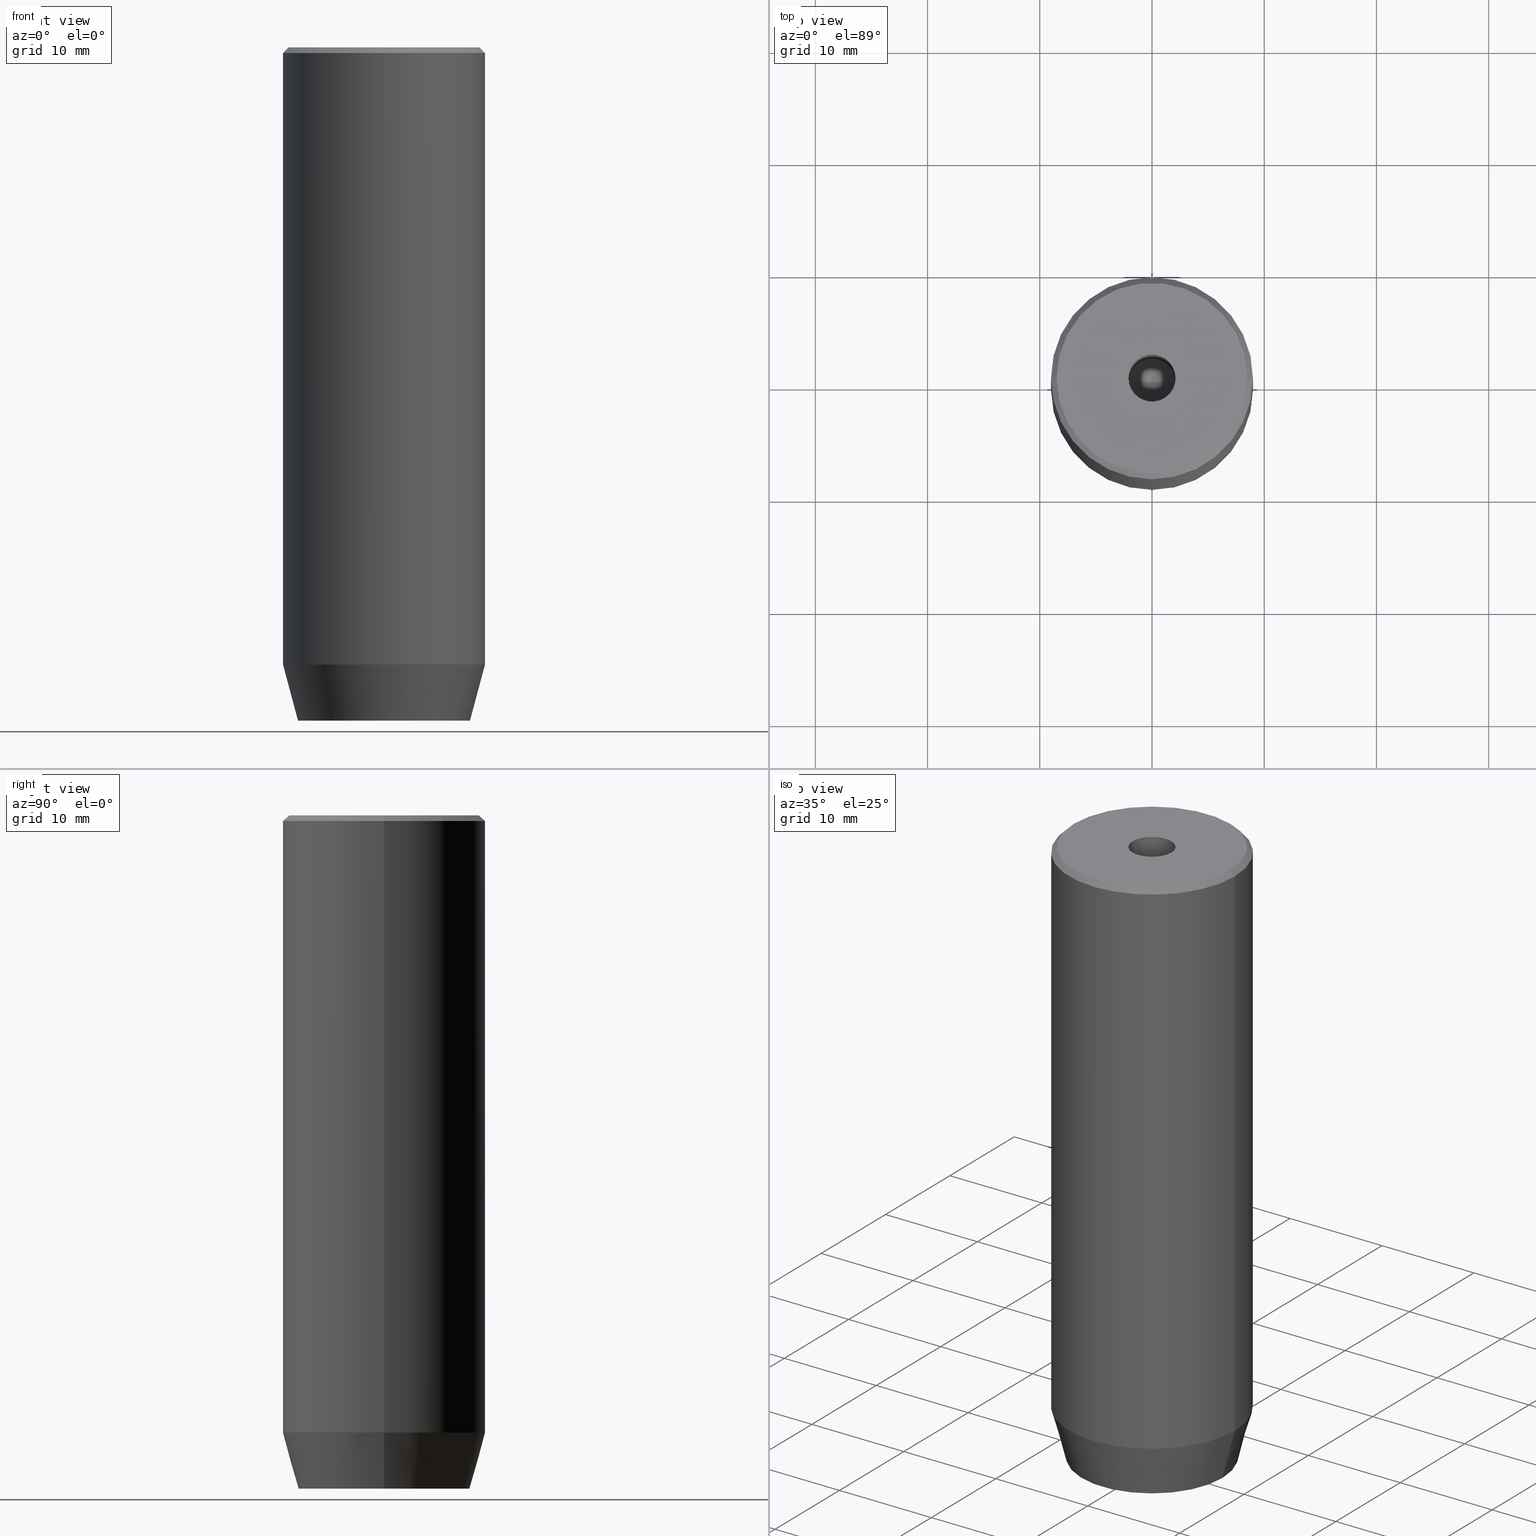
[diagram: canonical four-view strip — front | top / right | iso, engineering-drawing reading convention]
A machine part, canonical four-view strip (front | top / right | iso — engineering-drawing reading convention). The complete STEP part file that produces these views, byte-faithful:
ISO-10303-21;
HEADER;
FILE_DESCRIPTION (( 'STEP AP203' ),
    '1' );
FILE_NAME ('a99a.STEP',
    '2024-01-02T20:37:47',
    ( '' ),
    ( '' ),
    'SwSTEP 2.0',
    'SolidWorks 2019',
    '' );
FILE_SCHEMA (( 'CONFIG_CONTROL_DESIGN' ));
ENDSEC;

DATA;
#1 = CARTESIAN_POINT ( 'NONE',  ( -2.168404344971008868E-16, -3.464101615137754830, -60.00000000000000000 ) ) ;
#2 = DIRECTION ( 'NONE',  ( -0.000000000000000000, -0.000000000000000000, 1.000000000000000000 ) ) ;
#3 = ORIENTED_EDGE ( 'NONE', *, *, #525, .T. ) ;
#4 = DIRECTION ( 'NONE',  ( -0.8660254037844385966, -0.5000000000000001110, 0.000000000000000000 ) ) ;
#5 = LINE ( 'NONE', #278, #68 ) ;
#6 = DIRECTION ( 'NONE',  ( -1.000000000000000000, 0.000000000000000000, 0.000000000000000000 ) ) ;
#7 = EDGE_LOOP ( 'NONE', ( #498, #365, #12, #380 ) ) ;
#8 = LINE ( 'NONE', #269, #227 ) ;
#9 = APPROVAL ( #502, 'NEUR�EN�' ) ;
#10 = CIRCLE ( 'NONE', #328, 2.099999999999998757 ) ;
#11 = LINE ( 'NONE', #493, #218 ) ;
#12 = ORIENTED_EDGE ( 'NONE', *, *, #44, .T. ) ;
#13 = DESIGN_CONTEXT ( 'detailed design', #303, 'design' ) ;
#14 = FACE_OUTER_BOUND ( 'NONE', #479, .T. ) ;
#15 = DIRECTION ( 'NONE',  ( -0.000000000000000000, -0.000000000000000000, 1.000000000000000000 ) ) ;
#16 = APPROVAL_DATE_TIME ( #469, #9 ) ;
#17 = DIRECTION ( 'NONE',  ( 1.000000000000000000, 0.000000000000000000, 0.000000000000000000 ) ) ;
#18 = ORIENTED_EDGE ( 'NONE', *, *, #72, .F. ) ;
#19 = PERSON_AND_ORGANIZATION ( #371, #564 ) ;
#20 = CARTESIAN_POINT ( 'NONE',  ( -1.084202172485504434E-16, 3.464101615137754830, -57.20000000000000284 ) ) ;
#21 = CIRCLE ( 'NONE', #78, 7.660254037844383745 ) ;
#22 = ADVANCED_FACE ( 'NONE', ( #126 ), #342, .F. ) ;
#23 = CARTESIAN_POINT ( 'NONE',  ( 0.000000000000000000, 0.000000000000000000, -55.00000000000000000 ) ) ;
#24 = ORIENTED_EDGE ( 'NONE', *, *, #85, .F. ) ;
#25 = ORIENTED_EDGE ( 'NONE', *, *, #338, .F. ) ;
#26 = CARTESIAN_POINT ( 'NONE',  ( 2.099999999999996092, 0.000000000000000000, -20.00000000000000000 ) ) ;
#27 = CARTESIAN_POINT ( 'NONE',  ( -2.099999999999998757, 2.571758278209440478E-16, -1.990051048614449116E-16 ) ) ;
#28 = EDGE_LOOP ( 'NONE', ( #360, #18, #417, #429, #345, #57 ) ) ;
#29 = DIRECTION ( 'NONE',  ( 1.000000000000000000, 0.000000000000000000, 0.000000000000000000 ) ) ;
#30 = EDGE_CURVE ( 'NONE', #533, #506, #299, .T. ) ;
#31 = VERTEX_POINT ( 'NONE', #41 ) ;
#32 = LINE ( 'NONE', #203, #346 ) ;
#33 = VECTOR ( 'NONE', #99, 1000.000000000000000 ) ;
#34 = FACE_OUTER_BOUND ( 'NONE', #160, .T. ) ;
#35 = LOCAL_TIME ( 21, 37, 47.00000000000000000, #284 ) ;
#36 = DIRECTION ( 'NONE',  ( 1.000000000000000000, 0.000000000000000000, 0.000000000000000000 ) ) ;
#37 = FACE_OUTER_BOUND ( 'NONE', #7, .T. ) ;
#38 = EDGE_CURVE ( 'NONE', #332, #73, #10, .T. ) ;
#39 = CIRCLE ( 'NONE', #563, 9.000000000000000000 ) ;
#40 = CONICAL_SURFACE ( 'NONE', #167, 8.500000000000021316, 0.7853981633974380649 ) ;
#41 = CARTESIAN_POINT ( 'NONE',  ( -9.000000000000000000, 1.102182119232617714E-15, -0.4999999999999882871 ) ) ;
#42 = DIRECTION ( 'NONE',  ( -0.8660254037844385966, 0.5000000000000001110, 0.000000000000000000 ) ) ;
#43 = DIRECTION ( 'NONE',  ( -0.000000000000000000, -0.000000000000000000, 1.000000000000000000 ) ) ;
#44 = EDGE_CURVE ( 'NONE', #31, #565, #285, .T. ) ;
#45 = ORIENTED_EDGE ( 'NONE', *, *, #242, .F. ) ;
#46 = LINE ( 'NONE', #138, #396 ) ;
#47 = AXIS2_PLACEMENT_3D ( 'NONE', #309, #214, #543 ) ;
#48 = VECTOR ( 'NONE', #324, 1000.000000000000000 ) ;
#49 = DIRECTION ( 'NONE',  ( -2.503857664561932376E-16, 1.000000000000000000, 0.000000000000000000 ) ) ;
#50 = PLANE ( 'NONE',  #239 ) ;
#51 = ORIENTED_EDGE ( 'NONE', *, *, #308, .T. ) ;
#52 = CARTESIAN_POINT ( 'NONE',  ( 0.000000000000000000, 0.000000000000000000, -20.00000000000000000 ) ) ;
#53 = ADVANCED_FACE ( 'NONE', ( #37 ), #207, .T. ) ;
#54 = VERTEX_POINT ( 'NONE', #540 ) ;
#55 = DIRECTION ( 'NONE',  ( -0.000000000000000000, -0.000000000000000000, 1.000000000000000000 ) ) ;
#56 = CLOSED_SHELL ( 'NONE', ( #430, #381, #180, #229, #53, #128, #247, #347, #291, #400, #573, #508, #80, #113, #321, #22, #172, #188, #587 ) ) ;
#57 = ORIENTED_EDGE ( 'NONE', *, *, #456, .F. ) ;
#58 = VECTOR ( 'NONE', #453, 1000.000000000000000 ) ;
#59 = DIRECTION ( 'NONE',  ( -0.2588190451025211836, 3.169619151431770488E-17, 0.9659258262890680902 ) ) ;
#60 = DIRECTION ( 'NONE',  ( -0.000000000000000000, -0.000000000000000000, 1.000000000000000000 ) ) ;
#61 = DIRECTION ( 'NONE',  ( 0.000000000000000000, 0.000000000000000000, -1.000000000000000000 ) ) ;
#62 = ORIENTED_EDGE ( 'NONE', *, *, #252, .F. ) ;
#63 = DIRECTION ( 'NONE',  ( 0.8660254037844385966, -0.5000000000000001110, 0.000000000000000000 ) ) ;
#64 = EDGE_CURVE ( 'NONE', #111, #290, #495, .T. ) ;
#65 = ORIENTED_EDGE ( 'NONE', *, *, #421, .F. ) ;
#66 = PERSON_AND_ORGANIZATION_ROLE ( 'design_supplier' ) ;
#67 = VERTEX_POINT ( 'NONE', #585 ) ;
#68 = VECTOR ( 'NONE', #175, 1000.000000000000000 ) ;
#69 =( GEOMETRIC_REPRESENTATION_CONTEXT ( 3 ) GLOBAL_UNCERTAINTY_ASSIGNED_CONTEXT ( ( #237 ) ) GLOBAL_UNIT_ASSIGNED_CONTEXT ( ( #320, #468, #420 ) ) REPRESENTATION_CONTEXT ( 'NONE', 'WORKASPACE' ) );
#70 = ORIENTED_EDGE ( 'NONE', *, *, #107, .F. ) ;
#71 = LINE ( 'NONE', #26, #317 ) ;
#72 = EDGE_CURVE ( 'NONE', #223, #215, #132, .T. ) ;
#73 = VERTEX_POINT ( 'NONE', #224 ) ;
#74 = DIRECTION ( 'NONE',  ( 0.8571673007021111124, 0.000000000000000000, 0.5150380749100562650 ) ) ;
#75 = CARTESIAN_POINT ( 'NONE',  ( -3.000000000000000888, 1.732050807568876527, -57.20000000000000284 ) ) ;
#76 = CARTESIAN_POINT ( 'NONE',  ( 9.000000000000000000, 0.000000000000000000, -55.00000000000000000 ) ) ;
#77 = DIRECTION ( 'NONE',  ( 0.000000000000000000, 0.000000000000000000, -1.000000000000000000 ) ) ;
#78 = AXIS2_PLACEMENT_3D ( 'NONE', #518, #287, #523 ) ;
#79 = ORIENTED_EDGE ( 'NONE', *, *, #472, .T. ) ;
#80 = ADVANCED_FACE ( 'NONE', ( #451 ), #372, .F. ) ;
#81 = AXIS2_PLACEMENT_3D ( 'NONE', #187, #405, #367 ) ;
#82 = VECTOR ( 'NONE', #580, 1000.000000000000000 ) ;
#83 = CARTESIAN_POINT ( 'NONE',  ( 0.000000000000000000, 0.000000000000000000, -0.4999999999999882871 ) ) ;
#84 = ORIENTED_EDGE ( 'NONE', *, *, #195, .T. ) ;
#85 = EDGE_CURVE ( 'NONE', #67, #234, #301, .T. ) ;
#86 = DIRECTION ( 'NONE',  ( 0.000000000000000000, 0.000000000000000000, -1.000000000000000000 ) ) ;
#87 = FACE_OUTER_BOUND ( 'NONE', #411, .T. ) ;
#88 = CARTESIAN_POINT ( 'NONE',  ( 3.000000000000000000, 0.000000000000000000, -57.20000000000000284 ) ) ;
#89 = CARTESIAN_POINT ( 'NONE',  ( 0.000000000000000000, 0.000000000000000000, 0.000000000000000000 ) ) ;
#90 = FACE_OUTER_BOUND ( 'NONE', #154, .T. ) ;
#91 = ORIENTED_EDGE ( 'NONE', *, *, #107, .T. ) ;
#92 = CARTESIAN_POINT ( 'NONE',  ( 1.500000000000000222, -2.598076211353315568, -60.00000000000000000 ) ) ;
#93 = FACE_OUTER_BOUND ( 'NONE', #330, .T. ) ;
#94 = AXIS2_PLACEMENT_3D ( 'NONE', #535, #98, #463 ) ;
#95 = CARTESIAN_POINT ( 'NONE',  ( 0.000000000000000000, 0.000000000000000000, 0.000000000000000000 ) ) ;
#96 = EDGE_LOOP ( 'NONE', ( #194, #168, #170, #584, #102, #173 ) ) ;
#97 = EDGE_CURVE ( 'NONE', #358, #123, #136, .T. ) ;
#98 = DIRECTION ( 'NONE',  ( -0.000000000000000000, -0.000000000000000000, 1.000000000000000000 ) ) ;
#99 = DIRECTION ( 'NONE',  ( -0.8660254037844385966, 0.5000000000000001110, 0.000000000000000000 ) ) ;
#100 = CARTESIAN_POINT ( 'NONE',  ( -2.099999999999996092, 2.571758278209436534E-16, -20.00000000000000000 ) ) ;
#101 = DIRECTION ( 'NONE',  ( -0.000000000000000000, -0.000000000000000000, 1.000000000000000000 ) ) ;
#102 = ORIENTED_EDGE ( 'NONE', *, *, #363, .T. ) ;
#103 = DIRECTION ( 'NONE',  ( -0.000000000000000000, -0.000000000000000000, 1.000000000000000000 ) ) ;
#104 = DIRECTION ( 'NONE',  ( -0.8660254037844385966, 0.5000000000000001110, 0.000000000000000000 ) ) ;
#105 = ORIENTED_EDGE ( 'NONE', *, *, #212, .F. ) ;
#106 = APPROVAL_PERSON_ORGANIZATION ( #473, #293, #226 ) ;
#107 = EDGE_CURVE ( 'NONE', #225, #223, #186, .T. ) ;
#108 = ORIENTED_EDGE ( 'NONE', *, *, #260, .F. ) ;
#109 = CALENDAR_DATE ( 2024, 2, 1 ) ;
#110 = VERTEX_POINT ( 'NONE', #141 ) ;
#111 = VERTEX_POINT ( 'NONE', #263 ) ;
#112 = VECTOR ( 'NONE', #571, 1000.000000000000000 ) ;
#113 = ADVANCED_FACE ( 'NONE', ( #147 ), #267, .F. ) ;
#114 = LINE ( 'NONE', #119, #452 ) ;
#115 = COORDINATED_UNIVERSAL_TIME_OFFSET ( 1, 0, .AHEAD. ) ;
#116 = VERTEX_POINT ( 'NONE', #20 ) ;
#117 = FACE_OUTER_BOUND ( 'NONE', #298, .T. ) ;
#118 = LINE ( 'NONE', #75, #112 ) ;
#119 = CARTESIAN_POINT ( 'NONE',  ( 3.000000000000000000, 1.732050807568876527, -57.20000000000000284 ) ) ;
#120 = DIRECTION ( 'NONE',  ( 0.2588190451025211836, 0.000000000000000000, 0.9659258262890680902 ) ) ;
#121 = ORIENTED_EDGE ( 'NONE', *, *, #64, .T. ) ;
#122 = CC_DESIGN_SECURITY_CLASSIFICATION ( #329, ( #354 ) ) ;
#123 = VERTEX_POINT ( 'NONE', #379 ) ;
#124 = VECTOR ( 'NONE', #4, 1000.000000000000000 ) ;
#125 = EDGE_CURVE ( 'NONE', #394, #54, #499, .T. ) ;
#126 = FACE_OUTER_BOUND ( 'NONE', #238, .T. ) ;
#127 = CARTESIAN_POINT ( 'NONE',  ( -2.168404344971008868E-16, -3.464101615137754830, -57.20000000000000284 ) ) ;
#128 = ADVANCED_FACE ( 'NONE', ( #514, #14 ), #288, .T. ) ;
#129 = AXIS2_PLACEMENT_3D ( 'NONE', #261, #413, #6 ) ;
#130 = AXIS2_PLACEMENT_3D ( 'NONE', #419, #272, #437 ) ;
#131 = LINE ( 'NONE', #446, #294 ) ;
#132 = LINE ( 'NONE', #359, #143 ) ;
#133 = CARTESIAN_POINT ( 'NONE',  ( -3.000000000000000444, -7.511572993685800087E-16, -57.20000000000000284 ) ) ;
#134 = ORIENTED_EDGE ( 'NONE', *, *, #497, .F. ) ;
#135 = CYLINDRICAL_SURFACE ( 'NONE', #397, 2.099999999999997424 ) ;
#136 = LINE ( 'NONE', #312, #184 ) ;
#137 = LINE ( 'NONE', #313, #248 ) ;
#138 = CARTESIAN_POINT ( 'NONE',  ( 1.500000000000000222, 2.598076211353315568, -57.20000000000000284 ) ) ;
#139 = ORIENTED_EDGE ( 'NONE', *, *, #482, .F. ) ;
#140 = DIRECTION ( 'NONE',  ( -0.000000000000000000, -0.000000000000000000, 1.000000000000000000 ) ) ;
#141 = CARTESIAN_POINT ( 'NONE',  ( -2.168404344971008868E-16, -3.464101615137754830, -57.20000000000000284 ) ) ;
#142 = LINE ( 'NONE', #100, #48 ) ;
#143 = VECTOR ( 'NONE', #49, 1000.000000000000000 ) ;
#144 = EDGE_CURVE ( 'NONE', #123, #506, #39, .T. ) ;
#145 = EDGE_LOOP ( 'NONE', ( #414, #530, #105, #84 ) ) ;
#146 = ORIENTED_EDGE ( 'NONE', *, *, #169, .T. ) ;
#147 = FACE_OUTER_BOUND ( 'NONE', #553, .T. ) ;
#148 = SECURITY_CLASSIFICATION_LEVEL ( 'unclassified' ) ;
#149 = DIRECTION ( 'NONE',  ( -0.000000000000000000, -0.000000000000000000, -1.000000000000000000 ) ) ;
#150 = EDGE_CURVE ( 'NONE', #202, #110, #159, .T. ) ;
#151 = DATE_AND_TIME ( #109, #438 ) ;
#152 = AXIS2_PLACEMENT_3D ( 'NONE', #393, #435, #29 ) ;
#153 = CIRCLE ( 'NONE', #481, 7.660254037844383745 ) ;
#154 = EDGE_LOOP ( 'NONE', ( #289, #560, #470, #139 ) ) ;
#155 = CC_DESIGN_PERSON_AND_ORGANIZATION_ASSIGNMENT ( #385, #551, ( #331 ) ) ;
#156 = PERSON_AND_ORGANIZATION ( #371, #564 ) ;
#157 = APPROVAL_STATUS ( 'not_yet_approved' ) ;
#158 = EDGE_CURVE ( 'NONE', #234, #565, #243, .T. ) ;
#159 = LINE ( 'NONE', #375, #554 ) ;
#160 = EDGE_LOOP ( 'NONE', ( #181, #108, #522, #384 ) ) ;
#161 = COORDINATED_UNIVERSAL_TIME_OFFSET ( 1, 0, .AHEAD. ) ;
#162 = CC_DESIGN_APPROVAL ( #475, ( #329 ) ) ;
#163 = AXIS2_PLACEMENT_3D ( 'NONE', #433, #556, #204 ) ;
#164 = DIRECTION ( 'NONE',  ( 1.000000000000000000, 0.000000000000000000, 0.000000000000000000 ) ) ;
#165 = AXIS2_PLACEMENT_3D ( 'NONE', #182, #366, #220 ) ;
#166 = DIRECTION ( 'NONE',  ( -0.7071067811865402453, 0.000000000000000000, -0.7071067811865549002 ) ) ;
#167 = AXIS2_PLACEMENT_3D ( 'NONE', #361, #322, #505 ) ;
#168 = ORIENTED_EDGE ( 'NONE', *, *, #281, .T. ) ;
#169 = EDGE_CURVE ( 'NONE', #116, #512, #476, .T. ) ;
#170 = ORIENTED_EDGE ( 'NONE', *, *, #395, .T. ) ;
#171 = AXIS2_PLACEMENT_3D ( 'NONE', #83, #86, #579 ) ;
#172 = ADVANCED_FACE ( 'NONE', ( #326 ), #276, .T. ) ;
#173 = ORIENTED_EDGE ( 'NONE', *, *, #222, .T. ) ;
#174 = CC_DESIGN_APPROVAL ( #293, ( #354 ) ) ;
#175 = DIRECTION ( 'NONE',  ( -0.000000000000000000, -0.000000000000000000, 1.000000000000000000 ) ) ;
#176 = ORIENTED_EDGE ( 'NONE', *, *, #195, .F. ) ;
#177 = CARTESIAN_POINT ( 'NONE',  ( -3.000000000000000888, 1.732050807568876527, -60.00000000000000000 ) ) ;
#178 = EDGE_LOOP ( 'NONE', ( #348, #337, #3, #509 ) ) ;
#179 = DIRECTION ( 'NONE',  ( -0.000000000000000000, -0.000000000000000000, -1.000000000000000000 ) ) ;
#180 = ADVANCED_FACE ( 'NONE', ( #90 ), #450, .T. ) ;
#181 = ORIENTED_EDGE ( 'NONE', *, *, #388, .T. ) ;
#182 = CARTESIAN_POINT ( 'NONE',  ( -1.500000000000000666, -2.598076211353316456, -57.20000000000000284 ) ) ;
#183 = DIRECTION ( 'NONE',  ( 0.000000000000000000, -1.000000000000000000, 0.000000000000000000 ) ) ;
#184 = VECTOR ( 'NONE', #59, 1000.000000000000114 ) ;
#185 = ORIENTED_EDGE ( 'NONE', *, *, #456, .T. ) ;
#186 = LINE ( 'NONE', #401, #264 ) ;
#187 = CARTESIAN_POINT ( 'NONE',  ( 0.000000000000000000, 0.000000000000000000, 0.000000000000000000 ) ) ;
#188 = ADVANCED_FACE ( 'NONE', ( #545 ), #368, .F. ) ;
#189 = DATE_AND_TIME ( #271, #511 ) ;
#190 = FACE_OUTER_BOUND ( 'NONE', #178, .T. ) ;
#191 = VECTOR ( 'NONE', #410, 1000.000000000000000 ) ;
#192 = AXIS2_PLACEMENT_3D ( 'NONE', #52, #15, #586 ) ;
#193 = DIRECTION ( 'NONE',  ( 1.000000000000000000, 0.000000000000000000, 0.000000000000000000 ) ) ;
#194 = ORIENTED_EDGE ( 'NONE', *, *, #212, .T. ) ;
#195 = EDGE_CURVE ( 'NONE', #255, #215, #118, .T. ) ;
#196 = DIRECTION ( 'NONE',  ( -0.000000000000000000, -0.000000000000000000, 1.000000000000000000 ) ) ;
#197 = COORDINATED_UNIVERSAL_TIME_OFFSET ( 1, 0, .AHEAD. ) ;
#198 = DIRECTION ( 'NONE',  ( 0.7071067811865402453, 8.659560562354845344E-17, -0.7071067811865549002 ) ) ;
#199 = ORIENTED_EDGE ( 'NONE', *, *, #38, .F. ) ;
#200 = PRODUCT ( 'a99a', 'a99a', '', ( #427 ) ) ;
#201 = CIRCLE ( 'NONE', #47, 2.099999999999998757 ) ;
#202 = VERTEX_POINT ( 'NONE', #441 ) ;
#203 = CARTESIAN_POINT ( 'NONE',  ( 9.000000000000000000, 0.000000000000000000, 0.000000000000000000 ) ) ;
#204 = DIRECTION ( 'NONE',  ( -0.000000000000000000, 0.000000000000000000, -1.000000000000000000 ) ) ;
#205 = EDGE_CURVE ( 'NONE', #565, #31, #351, .T. ) ;
#206 = CARTESIAN_POINT ( 'NONE',  ( 9.000000000000000000, 0.000000000000000000, -0.4999999999999882871 ) ) ;
#207 = CYLINDRICAL_SURFACE ( 'NONE', #480, 9.000000000000000000 ) ;
#208 = ORIENTED_EDGE ( 'NONE', *, *, #125, .F. ) ;
#209 = DIRECTION ( 'NONE',  ( 0.000000000000000000, 0.000000000000000000, -1.000000000000000000 ) ) ;
#210 = CARTESIAN_POINT ( 'NONE',  ( 0.000000000000000000, 0.000000000000000000, -1.990051048614449116E-16 ) ) ;
#211 = VECTOR ( 'NONE', #149, 1000.000000000000000 ) ;
#212 = EDGE_CURVE ( 'NONE', #255, #116, #131, .T. ) ;
#213 = CARTESIAN_POINT ( 'NONE',  ( -3.000000000000000000, -1.732050807568877859, -60.00000000000000000 ) ) ;
#214 = DIRECTION ( 'NONE',  ( -0.000000000000000000, -0.000000000000000000, 1.000000000000000000 ) ) ;
#215 = VERTEX_POINT ( 'NONE', #177 ) ;
#216 = PLANE ( 'NONE',  #295 ) ;
#217 = AXIS2_PLACEMENT_3D ( 'NONE', #529, #349, #42 ) ;
#218 = VECTOR ( 'NONE', #104, 1000.000000000000000 ) ;
#219 = ORIENTED_EDGE ( 'NONE', *, *, #72, .T. ) ;
#220 = DIRECTION ( 'NONE',  ( 0.8660254037844385966, -0.5000000000000001110, 0.000000000000000000 ) ) ;
#221 = FACE_OUTER_BOUND ( 'NONE', #231, .T. ) ;
#222 = EDGE_CURVE ( 'NONE', #225, #255, #362, .T. ) ;
#223 = VERTEX_POINT ( 'NONE', #213 ) ;
#224 = CARTESIAN_POINT ( 'NONE',  ( 2.099999999999998757, 0.000000000000000000, -1.990051048614449116E-16 ) ) ;
#225 = VERTEX_POINT ( 'NONE', #399 ) ;
#226 = APPROVAL_ROLE ( '' ) ;
#227 = VECTOR ( 'NONE', #327, 999.9999999999998863 ) ;
#228 = APPROVAL_PERSON_ORGANIZATION ( #538, #9, #280 ) ;
#229 = ADVANCED_FACE ( 'NONE', ( #93 ), #487, .T. ) ;
#230 = VECTOR ( 'NONE', #166, 1000.000000000000114 ) ;
#231 = EDGE_LOOP ( 'NONE', ( #350, #24, #333, #268 ) ) ;
#232 = CARTESIAN_POINT ( 'NONE',  ( -1.084202172485504434E-16, 3.464101615137754830, -57.20000000000000284 ) ) ;
#233 = CARTESIAN_POINT ( 'NONE',  ( -9.000000000000000000, 1.102182119232617714E-15, 0.000000000000000000 ) ) ;
#234 = VERTEX_POINT ( 'NONE', #537 ) ;
#235 = FACE_OUTER_BOUND ( 'NONE', #300, .T. ) ;
#236 = DATE_TIME_ROLE ( 'creation_date' ) ;
#237 = UNCERTAINTY_MEASURE_WITH_UNIT (LENGTH_MEASURE( 1.000000000000000082E-05 ), #320, 'distance_accuracy_value', 'NONE');
#238 = EDGE_LOOP ( 'NONE', ( #185, #307, #572, #146 ) ) ;
#239 = AXIS2_PLACEMENT_3D ( 'NONE', #89, #318, #501 ) ;
#240 = VECTOR ( 'NONE', #2, 1000.000000000000000 ) ;
#241 = ORIENTED_EDGE ( 'NONE', *, *, #30, .T. ) ;
#242 = EDGE_CURVE ( 'NONE', #73, #332, #201, .T. ) ;
#243 = LINE ( 'NONE', #552, #546 ) ;
#244 = ORIENTED_EDGE ( 'NONE', *, *, #421, .T. ) ;
#245 = DIRECTION ( 'NONE',  ( -0.000000000000000000, -0.000000000000000000, -1.000000000000000000 ) ) ;
#246 = PLANE ( 'NONE',  #130 ) ;
#247 = ADVANCED_FACE ( 'NONE', ( #402, #581 ), #50, .T. ) ;
#248 = VECTOR ( 'NONE', #183, 1000.000000000000000 ) ;
#249 = DIRECTION ( 'NONE',  ( -1.000000000000000000, 0.000000000000000000, -0.000000000000000000 ) ) ;
#250 = CARTESIAN_POINT ( 'NONE',  ( 0.000000000000000000, 0.000000000000000000, -57.20000000000000284 ) ) ;
#251 = VERTEX_POINT ( 'NONE', #406 ) ;
#252 = EDGE_CURVE ( 'NONE', #54, #73, #5, .T. ) ;
#253 = AXIS2_PLACEMENT_3D ( 'NONE', #418, #383, #164 ) ;
#254 = DATE_AND_TIME ( #454, #262 ) ;
#255 = VERTEX_POINT ( 'NONE', #356 ) ;
#256 = CARTESIAN_POINT ( 'NONE',  ( 0.000000000000000000, 0.000000000000000000, -0.4999999999999882871 ) ) ;
#257 = CARTESIAN_POINT ( 'NONE',  ( 0.000000000000000000, 0.000000000000000000, -55.00000000000000000 ) ) ;
#258 = ORIENTED_EDGE ( 'NONE', *, *, #444, .T. ) ;
#259 = CARTESIAN_POINT ( 'NONE',  ( 3.000000000000000000, -1.732050807568876527, -57.20000000000000284 ) ) ;
#260 = EDGE_CURVE ( 'NONE', #202, #111, #532, .T. ) ;
#261 = CARTESIAN_POINT ( 'NONE',  ( 0.000000000000000000, 0.000000000000000000, 0.000000000000000000 ) ) ;
#262 = LOCAL_TIME ( 21, 37, 47.00000000000000000, #500 ) ;
#263 = CARTESIAN_POINT ( 'NONE',  ( 3.000000000000000000, -1.732050807568876527, -60.00000000000000000 ) ) ;
#264 = VECTOR ( 'NONE', #179, 1000.000000000000000 ) ;
#265 = DIRECTION ( 'NONE',  ( -0.000000000000000000, -0.000000000000000000, 1.000000000000000000 ) ) ;
#266 = ORIENTED_EDGE ( 'NONE', *, *, #363, .F. ) ;
#267 = PLANE ( 'NONE',  #273 ) ;
#268 = ORIENTED_EDGE ( 'NONE', *, *, #205, .F. ) ;
#269 = CARTESIAN_POINT ( 'NONE',  ( -1.499999999999999556, 2.598076211353316012, -60.00000000000000000 ) ) ;
#270 = APPROVAL_PERSON_ORGANIZATION ( #398, #475, #490 ) ;
#271 = CALENDAR_DATE ( 2024, 2, 1 ) ;
#272 = DIRECTION ( 'NONE',  ( -1.000000000000000000, -2.503857664561933362E-16, 0.000000000000000000 ) ) ;
#273 = AXIS2_PLACEMENT_3D ( 'NONE', #548, #323, #507 ) ;
#274 = CC_DESIGN_DATE_AND_TIME_ASSIGNMENT ( #189, #343, ( #329 ) ) ;
#275 = LINE ( 'NONE', #407, #391 ) ;
#276 = PLANE ( 'NONE',  #486 ) ;
#277 = ORIENTED_EDGE ( 'NONE', *, *, #472, .F. ) ;
#278 = CARTESIAN_POINT ( 'NONE',  ( 2.099999999999997424, 0.000000000000000000, 0.000000000000000000 ) ) ;
#279 = MANIFOLD_SOLID_BREP ( 'Vrt�k z�vitn�ku pro M5 z�vit1', #56 ) ;
#280 = APPROVAL_ROLE ( '' ) ;
#281 = EDGE_CURVE ( 'NONE', #116, #403, #46, .T. ) ;
#282 = CARTESIAN_POINT ( 'NONE',  ( 0.000000000000000000, 7.660254037844383745, -60.00000000000000000 ) ) ;
#283 = ORIENTED_EDGE ( 'NONE', *, *, #566, .T. ) ;
#284 = COORDINATED_UNIVERSAL_TIME_OFFSET ( 1, 0, .AHEAD. ) ;
#285 = CIRCLE ( 'NONE', #316, 9.000000000000000000 ) ;
#286 = ORIENTED_EDGE ( 'NONE', *, *, #30, .F. ) ;
#287 = DIRECTION ( 'NONE',  ( -0.000000000000000000, -0.000000000000000000, 1.000000000000000000 ) ) ;
#288 = PLANE ( 'NONE',  #464 ) ;
#289 = ORIENTED_EDGE ( 'NONE', *, *, #528, .F. ) ;
#290 = VERTEX_POINT ( 'NONE', #1 ) ;
#291 = ADVANCED_FACE ( 'NONE', ( #235 ), #344, .T. ) ;
#292 = CARTESIAN_POINT ( 'NONE',  ( 0.000000000000000000, 0.000000000000000000, -60.00000000000000000 ) ) ;
#293 = APPROVAL ( #157, 'NEUR�EN�' ) ;
#294 = VECTOR ( 'NONE', #306, 999.9999999999998863 ) ;
#295 = AXIS2_PLACEMENT_3D ( 'NONE', #576, #352, #302 ) ;
#296 = CARTESIAN_POINT ( 'NONE',  ( 0.000000000000000000, 0.000000000000000000, 0.000000000000000000 ) ) ;
#297 = PERSON_AND_ORGANIZATION_ROLE ( 'design_owner' ) ;
#298 = EDGE_LOOP ( 'NONE', ( #219, #176, #310, #91 ) ) ;
#299 = LINE ( 'NONE', #484, #520 ) ;
#300 = EDGE_LOOP ( 'NONE', ( #422, #51, #241, #314 ) ) ;
#301 = CIRCLE ( 'NONE', #94, 8.500000000000021316 ) ;
#302 = DIRECTION ( 'NONE',  ( -0.8660254037844387076, -0.4999999999999999445, 0.000000000000000000 ) ) ;
#303 = APPLICATION_CONTEXT ( 'configuration controlled 3d designs of mechanical parts and assemblies' ) ;
#304 = LOCAL_TIME ( 21, 37, 47.00000000000000000, #197 ) ;
#305 = APPROVAL_STATUS ( 'not_yet_approved' ) ;
#306 = DIRECTION ( 'NONE',  ( 0.8660254037844387076, 0.4999999999999999445, 0.000000000000000000 ) ) ;
#307 = ORIENTED_EDGE ( 'NONE', *, *, #550, .F. ) ;
#308 = EDGE_CURVE ( 'NONE', #358, #533, #21, .T. ) ;
#309 = CARTESIAN_POINT ( 'NONE',  ( 0.000000000000000000, 0.000000000000000000, -1.990051048614449116E-16 ) ) ;
#310 = ORIENTED_EDGE ( 'NONE', *, *, #222, .F. ) ;
#311 = CARTESIAN_POINT ( 'NONE',  ( 0.000000000000000000, 0.000000000000000000, 0.000000000000000000 ) ) ;
#312 = CARTESIAN_POINT ( 'NONE',  ( -9.000000000000000000, 1.102182119232617714E-15, -55.00000000000000000 ) ) ;
#313 = CARTESIAN_POINT ( 'NONE',  ( 3.000000000000000000, 0.000000000000000000, -60.00000000000000000 ) ) ;
#314 = ORIENTED_EDGE ( 'NONE', *, *, #144, .F. ) ;
#315 = CARTESIAN_POINT ( 'NONE',  ( -1.500000000000000666, -2.598076211353316456, -57.20000000000000284 ) ) ;
#316 = AXIS2_PLACEMENT_3D ( 'NONE', #256, #77, #439 ) ;
#317 = VECTOR ( 'NONE', #74, 1000.000000000000000 ) ;
#318 = DIRECTION ( 'NONE',  ( 0.000000000000000000, -0.000000000000000000, 1.000000000000000000 ) ) ;
#319 = ORIENTED_EDGE ( 'NONE', *, *, #559, .T. ) ;
#320 =( LENGTH_UNIT ( ) NAMED_UNIT ( * ) SI_UNIT ( .MILLI., .METRE. ) );
#321 = ADVANCED_FACE ( 'NONE', ( #34 ), #515, .F. ) ;
#322 = DIRECTION ( 'NONE',  ( 0.000000000000000000, 0.000000000000000000, -1.000000000000000000 ) ) ;
#323 = DIRECTION ( 'NONE',  ( 0.5000000000000001110, -0.8660254037844385966, 0.000000000000000000 ) ) ;
#324 = DIRECTION ( 'NONE',  ( -0.8571673007021111124, 1.049727191138617217E-16, 0.5150380749100562650 ) ) ;
#325 = ORIENTED_EDGE ( 'NONE', *, *, #485, .F. ) ;
#326 = FACE_OUTER_BOUND ( 'NONE', #96, .T. ) ;
#327 = DIRECTION ( 'NONE',  ( 0.8660254037844387076, 0.4999999999999999445, 0.000000000000000000 ) ) ;
#328 = AXIS2_PLACEMENT_3D ( 'NONE', #210, #341, #443 ) ;
#329 = SECURITY_CLASSIFICATION ( '', '', #148 ) ;
#330 = EDGE_LOOP ( 'NONE', ( #319, #503, #325, #286 ) ) ;
#331 = PRODUCT_DEFINITION ( 'NEZN�M�', '', #354, #13 ) ;
#332 = VERTEX_POINT ( 'NONE', #27 ) ;
#333 = ORIENTED_EDGE ( 'NONE', *, *, #482, .T. ) ;
#334 = DIRECTION ( 'NONE',  ( 1.000000000000000000, 0.000000000000000000, 0.000000000000000000 ) ) ;
#335 = PERSON_AND_ORGANIZATION ( #371, #564 ) ;
#336 = AXIS2_PLACEMENT_3D ( 'NONE', #296, #567, #17 ) ;
#337 = ORIENTED_EDGE ( 'NONE', *, *, #144, .T. ) ;
#338 = EDGE_CURVE ( 'NONE', #394, #332, #390, .T. ) ;
#339 = CARTESIAN_POINT ( 'NONE',  ( 0.000000000000000000, 0.000000000000000000, -55.00000000000000000 ) ) ;
#340 = CARTESIAN_POINT ( 'NONE',  ( 3.000000000000000000, 1.732050807568876527, -60.00000000000000000 ) ) ;
#341 = DIRECTION ( 'NONE',  ( -0.000000000000000000, -0.000000000000000000, 1.000000000000000000 ) ) ;
#342 = PLANE ( 'NONE',  #217 ) ;
#343 = DATE_TIME_ROLE ( 'classification_date' ) ;
#344 = CONICAL_SURFACE ( 'NONE', #510, 9.000000000000000000, 0.2617993877991499074 ) ;
#345 = ORIENTED_EDGE ( 'NONE', *, *, #388, .F. ) ;
#346 = VECTOR ( 'NONE', #60, 1000.000000000000000 ) ;
#347 = ADVANCED_FACE ( 'NONE', ( #190 ), #425, .T. ) ;
#348 = ORIENTED_EDGE ( 'NONE', *, *, #467, .F. ) ;
#349 = DIRECTION ( 'NONE',  ( 0.5000000000000001110, 0.8660254037844385966, -0.000000000000000000 ) ) ;
#350 = ORIENTED_EDGE ( 'NONE', *, *, #158, .F. ) ;
#351 = CIRCLE ( 'NONE', #171, 9.000000000000000000 ) ;
#352 = DIRECTION ( 'NONE',  ( -0.4999999999999999445, 0.8660254037844387076, 0.000000000000000000 ) ) ;
#353 = CARTESIAN_POINT ( 'NONE',  ( 0.000000000000000000, 0.000000000000000000, 0.000000000000000000 ) ) ;
#354 = PRODUCT_DEFINITION_FORMATION_WITH_SPECIFIED_SOURCE ( 'LIBOVOLN�', '', #200, .NOT_KNOWN. ) ;
#355 = EDGE_CURVE ( 'NONE', #215, #512, #8, .T. ) ;
#356 = CARTESIAN_POINT ( 'NONE',  ( -3.000000000000000888, 1.732050807568876527, -57.20000000000000284 ) ) ;
#357 = APPLICATION_CONTEXT ( 'configuration controlled 3d designs of mechanical parts and assemblies' ) ;
#358 = VERTEX_POINT ( 'NONE', #415 ) ;
#359 = CARTESIAN_POINT ( 'NONE',  ( -3.000000000000000444, -7.511572993685800087E-16, -60.00000000000000000 ) ) ;
#360 = ORIENTED_EDGE ( 'NONE', *, *, #355, .F. ) ;
#361 = CARTESIAN_POINT ( 'NONE',  ( 0.000000000000000000, 0.000000000000000000, 0.000000000000000000 ) ) ;
#362 = LINE ( 'NONE', #133, #191 ) ;
#363 = EDGE_CURVE ( 'NONE', #110, #225, #409, .T. ) ;
#364 = DIRECTION ( 'NONE',  ( 0.8660254037844385966, -0.5000000000000001110, 0.000000000000000000 ) ) ;
#365 = ORIENTED_EDGE ( 'NONE', *, *, #467, .T. ) ;
#366 = DIRECTION ( 'NONE',  ( -0.5000000000000001110, -0.8660254037844385966, 0.000000000000000000 ) ) ;
#367 = DIRECTION ( 'NONE',  ( 1.000000000000000000, 0.000000000000000000, 0.000000000000000000 ) ) ;
#368 = CONICAL_SURFACE ( 'NONE', #152, 2.099999999999996092, 1.029744258676652091 ) ;
#369 = AXIS2_PLACEMENT_3D ( 'NONE', #95, #101, #416 ) ;
#370 = CYLINDRICAL_SURFACE ( 'NONE', #369, 2.099999999999997424 ) ;
#371 = PERSON ( 'NEUR�EN�', 'NEUR�EN�', 'NEUR�EN�', ('NEUR�EN�'), ('NEUR�EN�'), ('NEUR�EN�') ) ;
#372 = PLANE ( 'NONE',  #165 ) ;
#373 = CALENDAR_DATE ( 2024, 2, 1 ) ;
#374 = ORIENTED_EDGE ( 'NONE', *, *, #38, .T. ) ;
#375 = CARTESIAN_POINT ( 'NONE',  ( 1.500000000000000222, -2.598076211353315568, -57.20000000000000284 ) ) ;
#376 = FACE_OUTER_BOUND ( 'NONE', #494, .T. ) ;
#377 = CALENDAR_DATE ( 2024, 2, 1 ) ;
#378 = CARTESIAN_POINT ( 'NONE',  ( 7.660254037844383745, 0.000000000000000000, -60.00000000000000000 ) ) ;
#379 = CARTESIAN_POINT ( 'NONE',  ( -9.000000000000000000, 1.102182119232617714E-15, -55.00000000000000000 ) ) ;
#380 = ORIENTED_EDGE ( 'NONE', *, *, #525, .F. ) ;
#381 = ADVANCED_FACE ( 'NONE', ( #412 ), #582, .F. ) ;
#382 = PERSON_AND_ORGANIZATION_ROLE ( 'creator' ) ;
#383 = DIRECTION ( 'NONE',  ( -0.000000000000000000, -0.000000000000000000, 1.000000000000000000 ) ) ;
#384 = ORIENTED_EDGE ( 'NONE', *, *, #550, .T. ) ;
#385 = PERSON_AND_ORGANIZATION ( #371, #564 ) ;
#386 = DIRECTION ( 'NONE',  ( 1.000000000000000000, 0.000000000000000000, 0.000000000000000000 ) ) ;
#387 = ORIENTED_EDGE ( 'NONE', *, *, #559, .F. ) ;
#388 = EDGE_CURVE ( 'NONE', #539, #111, #137, .T. ) ;
#389 = ORIENTED_EDGE ( 'NONE', *, *, #125, .T. ) ;
#390 = LINE ( 'NONE', #392, #426 ) ;
#391 = VECTOR ( 'NONE', #364, 1000.000000000000000 ) ;
#392 = CARTESIAN_POINT ( 'NONE',  ( -2.099999999999997424, 2.571758278209438506E-16, 0.000000000000000000 ) ) ;
#393 = CARTESIAN_POINT ( 'NONE',  ( 0.000000000000000000, 0.000000000000000000, -20.00000000000000000 ) ) ;
#394 = VERTEX_POINT ( 'NONE', #459 ) ;
#395 = EDGE_CURVE ( 'NONE', #403, #202, #549, .T. ) ;
#396 = VECTOR ( 'NONE', #63, 1000.000000000000000 ) ;
#397 = AXIS2_PLACEMENT_3D ( 'NONE', #311, #140, #462 ) ;
#398 = PERSON_AND_ORGANIZATION ( #371, #564 ) ;
#399 = CARTESIAN_POINT ( 'NONE',  ( -3.000000000000000000, -1.732050807568877859, -57.20000000000000284 ) ) ;
#400 = ADVANCED_FACE ( 'NONE', ( #221 ), #40, .T. ) ;
#401 = CARTESIAN_POINT ( 'NONE',  ( -3.000000000000000000, -1.732050807568877859, -57.20000000000000284 ) ) ;
#402 = FACE_BOUND ( 'NONE', #455, .T. ) ;
#403 = VERTEX_POINT ( 'NONE', #541 ) ;
#404 = AXIS2_PLACEMENT_3D ( 'NONE', #339, #477, #524 ) ;
#405 = DIRECTION ( 'NONE',  ( -0.000000000000000000, -0.000000000000000000, 1.000000000000000000 ) ) ;
#406 = CARTESIAN_POINT ( 'NONE',  ( -5.207640850796248781E-15, 0.000000000000000000, -21.26180729995787999 ) ) ;
#407 = CARTESIAN_POINT ( 'NONE',  ( 1.500000000000000222, 2.598076211353315568, -60.00000000000000000 ) ) ;
#408 = ORIENTED_EDGE ( 'NONE', *, *, #338, .T. ) ;
#409 = LINE ( 'NONE', #315, #33 ) ;
#410 = DIRECTION ( 'NONE',  ( -2.503857664561932376E-16, 1.000000000000000000, 0.000000000000000000 ) ) ;
#411 = EDGE_LOOP ( 'NONE', ( #25, #277, #436, #558 ) ) ;
#412 = FACE_OUTER_BOUND ( 'NONE', #449, .T. ) ;
#413 = DIRECTION ( 'NONE',  ( 0.000000000000000000, 0.000000000000000000, -1.000000000000000000 ) ) ;
#414 = ORIENTED_EDGE ( 'NONE', *, *, #355, .T. ) ;
#415 = CARTESIAN_POINT ( 'NONE',  ( -7.660254037844383745, 1.020146339021394469E-15, -60.00000000000000000 ) ) ;
#416 = DIRECTION ( 'NONE',  ( 1.000000000000000000, 0.000000000000000000, 0.000000000000000000 ) ) ;
#417 = ORIENTED_EDGE ( 'NONE', *, *, #444, .F. ) ;
#418 = CARTESIAN_POINT ( 'NONE',  ( 0.000000000000000000, 0.000000000000000000, -20.00000000000000000 ) ) ;
#419 = CARTESIAN_POINT ( 'NONE',  ( -3.000000000000000444, -7.511572993685800087E-16, -57.20000000000000284 ) ) ;
#420 =( NAMED_UNIT ( * ) SI_UNIT ( $, .STERADIAN. ) SOLID_ANGLE_UNIT ( ) );
#421 = EDGE_CURVE ( 'NONE', #251, #394, #142, .T. ) ;
#422 = ORIENTED_EDGE ( 'NONE', *, *, #97, .F. ) ;
#423 = APPROVAL_DATE_TIME ( #151, #293 ) ;
#424 = APPLICATION_PROTOCOL_DEFINITION ( 'international standard', 'config_control_design', 1994, #357 ) ;
#425 = CYLINDRICAL_SURFACE ( 'NONE', #81, 9.000000000000000000 ) ;
#426 = VECTOR ( 'NONE', #569, 1000.000000000000000 ) ;
#427 = MECHANICAL_CONTEXT ( 'NONE', #357, 'mechanical' ) ;
#428 = DIRECTION ( 'NONE',  ( -1.000000000000000000, 0.000000000000000000, -0.000000000000000000 ) ) ;
#429 = ORIENTED_EDGE ( 'NONE', *, *, #64, .F. ) ;
#430 = ADVANCED_FACE ( 'NONE', ( #376 ), #370, .F. ) ;
#431 = EDGE_LOOP ( 'NONE', ( #65, #445, #79 ) ) ;
#432 = CARTESIAN_POINT ( 'NONE',  ( -8.500000000000021316, 0.000000000000000000, 0.000000000000000000 ) ) ;
#433 = CARTESIAN_POINT ( 'NONE',  ( 3.000000000000000000, 0.000000000000000000, -57.20000000000000284 ) ) ;
#434 = CC_DESIGN_PERSON_AND_ORGANIZATION_ASSIGNMENT ( #557, #382, ( #354 ) ) ;
#435 = DIRECTION ( 'NONE',  ( -0.000000000000000000, -0.000000000000000000, 1.000000000000000000 ) ) ;
#436 = ORIENTED_EDGE ( 'NONE', *, *, #252, .T. ) ;
#437 = DIRECTION ( 'NONE',  ( 2.503857664561933362E-16, -1.000000000000000000, 0.000000000000000000 ) ) ;
#438 = LOCAL_TIME ( 21, 37, 47.00000000000000000, #161 ) ;
#439 = DIRECTION ( 'NONE',  ( 1.000000000000000000, 0.000000000000000000, 0.000000000000000000 ) ) ;
#440 = ORIENTED_EDGE ( 'NONE', *, *, #566, .F. ) ;
#441 = CARTESIAN_POINT ( 'NONE',  ( 3.000000000000000000, -1.732050807568876527, -57.20000000000000284 ) ) ;
#442 = VECTOR ( 'NONE', #448, 1000.000000000000000 ) ;
#443 = DIRECTION ( 'NONE',  ( 1.000000000000000000, 0.000000000000000000, 0.000000000000000000 ) ) ;
#444 = EDGE_CURVE ( 'NONE', #290, #223, #11, .T. ) ;
#445 = ORIENTED_EDGE ( 'NONE', *, *, #497, .T. ) ;
#446 = CARTESIAN_POINT ( 'NONE',  ( -1.499999999999999556, 2.598076211353316012, -57.20000000000000284 ) ) ;
#447 = CC_DESIGN_PERSON_AND_ORGANIZATION_ASSIGNMENT ( #19, #519, ( #329 ) ) ;
#448 = DIRECTION ( 'NONE',  ( -0.000000000000000000, -0.000000000000000000, -1.000000000000000000 ) ) ;
#449 = EDGE_LOOP ( 'NONE', ( #134, #244, #389 ) ) ;
#450 = CONICAL_SURFACE ( 'NONE', #129, 8.500000000000021316, 0.7853981633974380649 ) ;
#451 = FACE_OUTER_BOUND ( 'NONE', #483, .T. ) ;
#452 = VECTOR ( 'NONE', #245, 1000.000000000000000 ) ;
#453 = DIRECTION ( 'NONE',  ( 0.000000000000000000, -1.000000000000000000, 0.000000000000000000 ) ) ;
#454 = CALENDAR_DATE ( 2024, 2, 1 ) ;
#455 = EDGE_LOOP ( 'NONE', ( #45, #199 ) ) ;
#456 = EDGE_CURVE ( 'NONE', #512, #539, #275, .T. ) ;
#457 = APPROVAL_DATE_TIME ( #254, #475 ) ;
#458 = ORIENTED_EDGE ( 'NONE', *, *, #260, .T. ) ;
#459 = CARTESIAN_POINT ( 'NONE',  ( -2.099999999999996092, 2.571758278209436534E-16, -20.00000000000000000 ) ) ;
#460 = PRODUCT_RELATED_PRODUCT_CATEGORY ( 'detail', '', ( #200 ) ) ;
#461 = ORIENTED_EDGE ( 'NONE', *, *, #85, .T. ) ;
#462 = DIRECTION ( 'NONE',  ( 1.000000000000000000, 0.000000000000000000, 0.000000000000000000 ) ) ;
#463 = DIRECTION ( 'NONE',  ( 1.000000000000000000, 0.000000000000000000, 0.000000000000000000 ) ) ;
#464 = AXIS2_PLACEMENT_3D ( 'NONE', #282, #61, #428 ) ;
#465 = CC_DESIGN_APPROVAL ( #9, ( #331 ) ) ;
#466 = CARTESIAN_POINT ( 'NONE',  ( 0.000000000000000000, 3.464101615137753942, -60.00000000000000000 ) ) ;
#467 = EDGE_CURVE ( 'NONE', #123, #31, #544, .T. ) ;
#468 =( NAMED_UNIT ( * ) PLANE_ANGLE_UNIT ( ) SI_UNIT ( $, .RADIAN. ) );
#469 = DATE_AND_TIME ( #373, #304 ) ;
#470 = ORIENTED_EDGE ( 'NONE', *, *, #44, .F. ) ;
#471 = CARTESIAN_POINT ( 'NONE',  ( 0.000000000000000000, 0.000000000000000000, -20.00000000000000000 ) ) ;
#472 = EDGE_CURVE ( 'NONE', #54, #394, #574, .T. ) ;
#473 = PERSON_AND_ORGANIZATION ( #371, #564 ) ;
#474 = LINE ( 'NONE', #432, #230 ) ;
#475 = APPROVAL ( #305, 'NEUR�EN�' ) ;
#476 = LINE ( 'NONE', #232, #211 ) ;
#477 = DIRECTION ( 'NONE',  ( -0.000000000000000000, -0.000000000000000000, 1.000000000000000000 ) ) ;
#478 = DIRECTION ( 'NONE',  ( -0.000000000000000000, -0.000000000000000000, 1.000000000000000000 ) ) ;
#479 = EDGE_LOOP ( 'NONE', ( #387, #517 ) ) ;
#480 = AXIS2_PLACEMENT_3D ( 'NONE', #353, #55, #531 ) ;
#481 = AXIS2_PLACEMENT_3D ( 'NONE', #292, #478, #36 ) ;
#482 = EDGE_CURVE ( 'NONE', #67, #31, #474, .T. ) ;
#483 = EDGE_LOOP ( 'NONE', ( #258, #70, #266, #283 ) ) ;
#484 = CARTESIAN_POINT ( 'NONE',  ( 9.000000000000000000, 0.000000000000000000, -55.00000000000000000 ) ) ;
#485 = EDGE_CURVE ( 'NONE', #506, #123, #583, .T. ) ;
#486 = AXIS2_PLACEMENT_3D ( 'NONE', #250, #209, #249 ) ;
#487 = CONICAL_SURFACE ( 'NONE', #527, 9.000000000000000000, 0.2617993877991499074 ) ;
#488 = ORIENTED_EDGE ( 'NONE', *, *, #528, .T. ) ;
#489 = AXIS2_PLACEMENT_3D ( 'NONE', #504, #547, #193 ) ;
#490 = APPROVAL_ROLE ( '' ) ;
#491 = ORIENTED_EDGE ( 'NONE', *, *, #150, .F. ) ;
#492 = DIRECTION ( 'NONE',  ( 1.000000000000000000, 0.000000000000000000, 0.000000000000000000 ) ) ;
#493 = CARTESIAN_POINT ( 'NONE',  ( -1.500000000000000666, -2.598076211353316456, -60.00000000000000000 ) ) ;
#494 = EDGE_LOOP ( 'NONE', ( #208, #408, #374, #62 ) ) ;
#495 = LINE ( 'NONE', #92, #124 ) ;
#496 = CARTESIAN_POINT ( 'NONE',  ( 0.000000000000000000, 0.000000000000000000, -55.00000000000000000 ) ) ;
#497 = EDGE_CURVE ( 'NONE', #251, #54, #71, .T. ) ;
#498 = ORIENTED_EDGE ( 'NONE', *, *, #485, .T. ) ;
#499 = CIRCLE ( 'NONE', #253, 2.099999999999996092 ) ;
#500 = COORDINATED_UNIVERSAL_TIME_OFFSET ( 1, 0, .AHEAD. ) ;
#501 = DIRECTION ( 'NONE',  ( 1.000000000000000000, 0.000000000000000000, 0.000000000000000000 ) ) ;
#502 = APPROVAL_STATUS ( 'not_yet_approved' ) ;
#503 = ORIENTED_EDGE ( 'NONE', *, *, #97, .T. ) ;
#504 = CARTESIAN_POINT ( 'NONE',  ( 0.000000000000000000, 0.000000000000000000, 0.000000000000000000 ) ) ;
#505 = DIRECTION ( 'NONE',  ( -1.000000000000000000, 0.000000000000000000, 0.000000000000000000 ) ) ;
#506 = VERTEX_POINT ( 'NONE', #76 ) ;
#507 = DIRECTION ( 'NONE',  ( 0.8660254037844385966, 0.5000000000000001110, 0.000000000000000000 ) ) ;
#508 = ADVANCED_FACE ( 'NONE', ( #117 ), #246, .F. ) ;
#509 = ORIENTED_EDGE ( 'NONE', *, *, #205, .T. ) ;
#510 = AXIS2_PLACEMENT_3D ( 'NONE', #496, #265, #334 ) ;
#511 = LOCAL_TIME ( 21, 37, 47.00000000000000000, #115 ) ;
#512 = VERTEX_POINT ( 'NONE', #466 ) ;
#513 = DATE_AND_TIME ( #377, #35 ) ;
#514 = FACE_BOUND ( 'NONE', #28, .T. ) ;
#515 = PLANE ( 'NONE',  #163 ) ;
#516 = DIRECTION ( 'NONE',  ( -0.8660254037844385966, -0.5000000000000001110, 0.000000000000000000 ) ) ;
#517 = ORIENTED_EDGE ( 'NONE', *, *, #308, .F. ) ;
#518 = CARTESIAN_POINT ( 'NONE',  ( 0.000000000000000000, 0.000000000000000000, -60.00000000000000000 ) ) ;
#519 = PERSON_AND_ORGANIZATION_ROLE ( 'classification_officer' ) ;
#520 = VECTOR ( 'NONE', #120, 1000.000000000000114 ) ;
#521 = AXIS2_PLACEMENT_3D ( 'NONE', #471, #103, #526 ) ;
#522 = ORIENTED_EDGE ( 'NONE', *, *, #395, .F. ) ;
#523 = DIRECTION ( 'NONE',  ( 1.000000000000000000, 0.000000000000000000, 0.000000000000000000 ) ) ;
#524 = DIRECTION ( 'NONE',  ( 1.000000000000000000, 0.000000000000000000, 0.000000000000000000 ) ) ;
#525 = EDGE_CURVE ( 'NONE', #506, #565, #32, .T. ) ;
#526 = DIRECTION ( 'NONE',  ( 1.000000000000000000, 0.000000000000000000, 0.000000000000000000 ) ) ;
#527 = AXIS2_PLACEMENT_3D ( 'NONE', #257, #43, #492 ) ;
#528 = EDGE_CURVE ( 'NONE', #234, #67, #555, .T. ) ;
#529 = CARTESIAN_POINT ( 'NONE',  ( 1.500000000000000222, 2.598076211353315568, -57.20000000000000284 ) ) ;
#530 = ORIENTED_EDGE ( 'NONE', *, *, #169, .F. ) ;
#531 = DIRECTION ( 'NONE',  ( 1.000000000000000000, 0.000000000000000000, 0.000000000000000000 ) ) ;
#532 = LINE ( 'NONE', #259, #442 ) ;
#533 = VERTEX_POINT ( 'NONE', #378 ) ;
#534 = FACE_OUTER_BOUND ( 'NONE', #145, .T. ) ;
#535 = CARTESIAN_POINT ( 'NONE',  ( 0.000000000000000000, 0.000000000000000000, 0.000000000000000000 ) ) ;
#536 = CC_DESIGN_PERSON_AND_ORGANIZATION_ASSIGNMENT ( #156, #297, ( #200 ) ) ;
#537 = CARTESIAN_POINT ( 'NONE',  ( 8.500000000000021316, 1.071565949253935307E-15, 0.000000000000000000 ) ) ;
#538 = PERSON_AND_ORGANIZATION ( #371, #564 ) ;
#539 = VERTEX_POINT ( 'NONE', #340 ) ;
#540 = CARTESIAN_POINT ( 'NONE',  ( 2.099999999999996092, 0.000000000000000000, -20.00000000000000000 ) ) ;
#541 = CARTESIAN_POINT ( 'NONE',  ( 3.000000000000000000, 1.732050807568876527, -57.20000000000000284 ) ) ;
#542 = SHAPE_DEFINITION_REPRESENTATION ( #568, #578 ) ;
#543 = DIRECTION ( 'NONE',  ( 1.000000000000000000, 0.000000000000000000, 0.000000000000000000 ) ) ;
#544 = LINE ( 'NONE', #233, #240 ) ;
#545 = FACE_OUTER_BOUND ( 'NONE', #431, .T. ) ;
#546 = VECTOR ( 'NONE', #198, 1000.000000000000114 ) ;
#547 = DIRECTION ( 'NONE',  ( 0.000000000000000000, 0.000000000000000000, 1.000000000000000000 ) ) ;
#548 = CARTESIAN_POINT ( 'NONE',  ( 1.500000000000000222, -2.598076211353315568, -57.20000000000000284 ) ) ;
#549 = LINE ( 'NONE', #88, #58 ) ;
#550 = EDGE_CURVE ( 'NONE', #403, #539, #114, .T. ) ;
#551 = PERSON_AND_ORGANIZATION_ROLE ( 'creator' ) ;
#552 = CARTESIAN_POINT ( 'NONE',  ( 8.500000000000021316, 1.040949779275252901E-15, 0.000000000000000000 ) ) ;
#553 = EDGE_LOOP ( 'NONE', ( #121, #440, #491, #458 ) ) ;
#554 = VECTOR ( 'NONE', #516, 1000.000000000000000 ) ;
#555 = CIRCLE ( 'NONE', #336, 8.500000000000021316 ) ;
#556 = DIRECTION ( 'NONE',  ( 1.000000000000000000, 0.000000000000000000, -0.000000000000000000 ) ) ;
#557 = PERSON_AND_ORGANIZATION ( #371, #564 ) ;
#558 = ORIENTED_EDGE ( 'NONE', *, *, #242, .T. ) ;
#559 = EDGE_CURVE ( 'NONE', #533, #358, #153, .T. ) ;
#560 = ORIENTED_EDGE ( 'NONE', *, *, #158, .T. ) ;
#561 = CC_DESIGN_PERSON_AND_ORGANIZATION_ASSIGNMENT ( #335, #66, ( #354 ) ) ;
#562 = EDGE_LOOP ( 'NONE', ( #461, #488 ) ) ;
#563 = AXIS2_PLACEMENT_3D ( 'NONE', #23, #196, #386 ) ;
#564 = ORGANIZATION ( 'NEUR�EN�', 'NEUR�EN�', '' ) ;
#565 = VERTEX_POINT ( 'NONE', #206 ) ;
#566 = EDGE_CURVE ( 'NONE', #110, #290, #570, .T. ) ;
#567 = DIRECTION ( 'NONE',  ( -0.000000000000000000, -0.000000000000000000, 1.000000000000000000 ) ) ;
#568 = PRODUCT_DEFINITION_SHAPE ( 'NONE', 'NONE',  #331 ) ;
#569 = DIRECTION ( 'NONE',  ( -0.000000000000000000, -0.000000000000000000, 1.000000000000000000 ) ) ;
#570 = LINE ( 'NONE', #127, #82 ) ;
#571 = DIRECTION ( 'NONE',  ( -0.000000000000000000, -0.000000000000000000, -1.000000000000000000 ) ) ;
#572 = ORIENTED_EDGE ( 'NONE', *, *, #281, .F. ) ;
#573 = ADVANCED_FACE ( 'NONE', ( #534 ), #216, .F. ) ;
#574 = CIRCLE ( 'NONE', #521, 2.099999999999996092 ) ;
#575 = APPLICATION_PROTOCOL_DEFINITION ( 'international standard', 'config_control_design', 1994, #303 ) ;
#576 = CARTESIAN_POINT ( 'NONE',  ( -1.499999999999999556, 2.598076211353316012, -57.20000000000000284 ) ) ;
#577 = CC_DESIGN_DATE_AND_TIME_ASSIGNMENT ( #513, #236, ( #331 ) ) ;
#578 = ADVANCED_BREP_SHAPE_REPRESENTATION ( 'a99a', ( #279, #489 ), #69 ) ;
#579 = DIRECTION ( 'NONE',  ( 1.000000000000000000, 0.000000000000000000, 0.000000000000000000 ) ) ;
#580 = DIRECTION ( 'NONE',  ( -0.000000000000000000, -0.000000000000000000, -1.000000000000000000 ) ) ;
#581 = FACE_OUTER_BOUND ( 'NONE', #562, .T. ) ;
#582 = CONICAL_SURFACE ( 'NONE', #192, 2.099999999999996092, 1.029744258676652091 ) ;
#583 = CIRCLE ( 'NONE', #404, 9.000000000000000000 ) ;
#584 = ORIENTED_EDGE ( 'NONE', *, *, #150, .T. ) ;
#585 = CARTESIAN_POINT ( 'NONE',  ( -8.500000000000021316, 0.000000000000000000, 0.000000000000000000 ) ) ;
#586 = DIRECTION ( 'NONE',  ( 1.000000000000000000, 0.000000000000000000, 0.000000000000000000 ) ) ;
#587 = ADVANCED_FACE ( 'NONE', ( #87 ), #135, .F. ) ;
ENDSEC;
END-ISO-10303-21;
